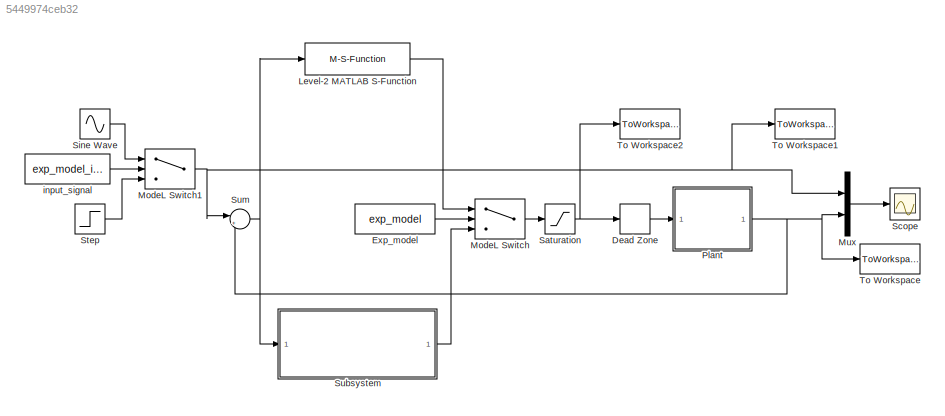
MODEL slx_5449974ceb32
KIND model
BLOCK [DeadZone] Dead Zone
  LowerValue = -2
  UpperValue = 2
BLOCK [Constant] Exp_model
  Value = exp_model
BLOCK [M-S-Function] Level-2 MATLAB S-Function
  FunctionName = lead_lag_s_function
  Parameters = lead_lag_params
  Ports = [1, 1]
BLOCK [Switch] ModeL Switch
  Criteria = u2 ~= 0
  InputSameDT = off
  SaturateOnIntegerOverflow = off
BLOCK [Switch] ModeL Switch1
  Criteria = u2 > Threshold
  InputSameDT = off
  SaturateOnIntegerOverflow = off
BLOCK [Mux] Mux
  DisplayOption = bar
  Inputs = 2
  Ports = [2, 1]
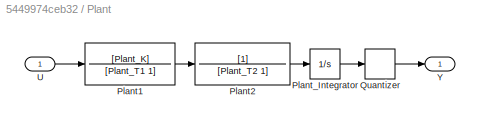
BLOCK [SubSystem] Plant
  FunctionWithSeparateData = off
  MaskHideContents = off
  MinAlgLoopOccurrences = off
  Opaque = off
  Ports = [1, 1]
  PropExecContextOutsideSubsystem = off
  RTWSystemCode = Auto
  RequestExecContextInheritance = off
BLOCK [TransferFcn] Plant/Plant1
  Denominator = [Plant_T1 1]
  Numerator = [Plant_K]
BLOCK [TransferFcn] Plant/Plant2
  Denominator = [Plant_T2 1]
BLOCK [Integrator] Plant/Plant_Integrator
  Ports = [1, 1]
BLOCK [Quantizer] Plant/Quantizer
  QuantizationInterval = 0.005
BLOCK [Inport] Plant/U
  IconDisplay = Signal name
BLOCK [Outport] Plant/Y
  IconDisplay = Signal name
BLOCK [Saturate] Saturation
  InputPortMap = u0
  LowerLimit = -19.2
  Ports = [1, 1]
  UpperLimit = 19.2
BLOCK [Scope] Scope
  DataFormat = StructureWithTime
  Floating = off
  LimitDataPoints = off
  NumInputPorts = 1
  Ports = [1]
  SampleTime = 0
  ShowLegends = off
  TimeRange = 5
BLOCK [Sin] Sine Wave
  Amplitude = 20
  Frequency = 2*pi*5
  Ports = [0, 1]
  SampleTime = 0
BLOCK [Step] Step
  After = 60
  SampleTime = 0
  Time = simulink_start_time
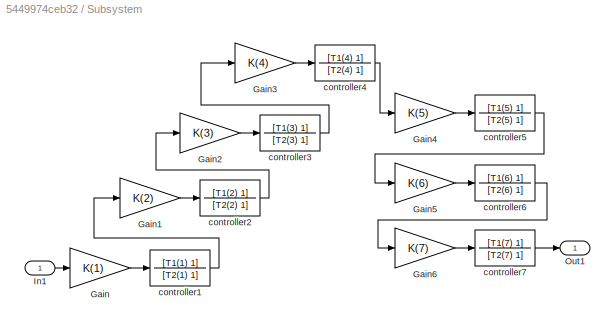
BLOCK [SubSystem] Subsystem
  FunctionWithSeparateData = off
  MaskHideContents = off
  MinAlgLoopOccurrences = off
  Opaque = off
  Ports = [1, 1]
  PropExecContextOutsideSubsystem = off
  RTWSystemCode = Auto
  RequestExecContextInheritance = off
BLOCK [Gain] Subsystem/Gain
  Gain = K(1)
  OutDataTypeStr = Inherit: Inherit via internal rule
  ParamDataTypeStr = Inherit: Inherit via internal rule
  SaturateOnIntegerOverflow = off
BLOCK [Gain] Subsystem/Gain1
  Gain = K(2)
  OutDataTypeStr = Inherit: Inherit via internal rule
  ParamDataTypeStr = Inherit: Inherit via internal rule
  SaturateOnIntegerOverflow = off
BLOCK [Gain] Subsystem/Gain2
  Gain = K(3)
  OutDataTypeStr = Inherit: Inherit via internal rule
  ParamDataTypeStr = Inherit: Inherit via internal rule
  SaturateOnIntegerOverflow = off
BLOCK [Gain] Subsystem/Gain3
  Gain = K(4)
  OutDataTypeStr = Inherit: Inherit via internal rule
  ParamDataTypeStr = Inherit: Inherit via internal rule
  SaturateOnIntegerOverflow = off
BLOCK [Gain] Subsystem/Gain4
  Gain = K(5)
  OutDataTypeStr = Inherit: Inherit via internal rule
  ParamDataTypeStr = Inherit: Inherit via internal rule
  SaturateOnIntegerOverflow = off
BLOCK [Gain] Subsystem/Gain5
  Gain = K(6)
  OutDataTypeStr = Inherit: Inherit via internal rule
  ParamDataTypeStr = Inherit: Inherit via internal rule
  SaturateOnIntegerOverflow = off
BLOCK [Gain] Subsystem/Gain6
  Gain = K(7)
  OutDataTypeStr = Inherit: Inherit via internal rule
  ParamDataTypeStr = Inherit: Inherit via internal rule
  SaturateOnIntegerOverflow = off
BLOCK [Inport] Subsystem/In1
  IconDisplay = Port number
BLOCK [Outport] Subsystem/Out1
  IconDisplay = Port number
BLOCK [TransferFcn] Subsystem/controller1
  Denominator = [T2(1) 1]
  Numerator = [T1(1) 1]
BLOCK [TransferFcn] Subsystem/controller2
  Denominator = [T2(2) 1]
  Numerator = [T1(2) 1]
BLOCK [TransferFcn] Subsystem/controller3
  Denominator = [T2(3) 1]
  Numerator = [T1(3) 1]
BLOCK [TransferFcn] Subsystem/controller4
  Denominator = [T2(4) 1]
  Numerator = [T1(4) 1]
BLOCK [TransferFcn] Subsystem/controller5
  Denominator = [T2(5) 1]
  Numerator = [T1(5) 1]
BLOCK [TransferFcn] Subsystem/controller6
  Denominator = [T2(6) 1]
  Numerator = [T1(6) 1]
BLOCK [TransferFcn] Subsystem/controller7
  Denominator = [T2(7) 1]
  Numerator = [T1(7) 1]
BLOCK [Sum] Sum
  IconShape = round
  InputSameDT = off
  Inputs = |+-
  OutDataTypeStr = Inherit: Inherit via internal rule
  Ports = [2, 1]
  SaturateOnIntegerOverflow = off
BLOCK [ToWorkspace] To Workspace
  MaxDataPoints = inf
  Ports = [1]
  SampleTime = -1
  VariableName = y
BLOCK [ToWorkspace] To Workspace1
  MaxDataPoints = inf
  Ports = [1]
  SampleTime = -1
  VariableName = r
BLOCK [ToWorkspace] To Workspace2
  MaxDataPoints = inf
  Ports = [1]
  SampleTime = -1
  VariableName = u
BLOCK [Constant] input_signal
  Value = exp_model_input
LINE Dead Zone:1 -> Plant:1
LINE Exp_model:1 -> ModeL Switch:2
LINE Level-2 MATLAB S-Function:1 -> ModeL Switch:1
NET ModeL Switch1:1 -> Mux:1, Sum:1, To Workspace1:1
LINE ModeL Switch:1 -> Saturation:1
LINE Mux:1 -> Scope:1
LINE Plant/Plant1:1 -> Plant/Plant2:1
LINE Plant/Plant2:1 -> Plant/Plant_Integrator:1
LINE Plant/Plant_Integrator:1 -> Plant/Quantizer:1
LINE Plant/Quantizer:1 -> Plant/Y:1
LINE Plant/U:1 -> Plant/Plant1:1
NET Plant:1 -> Mux:2, Sum:2, To Workspace:1
NET Saturation:1 -> Dead Zone:1, To Workspace2:1
LINE Sine Wave:1 -> ModeL Switch1:1
LINE Step:1 -> ModeL Switch1:3
LINE Subsystem/Gain1:1 -> Subsystem/controller2:1
LINE Subsystem/Gain2:1 -> Subsystem/controller3:1
LINE Subsystem/Gain3:1 -> Subsystem/controller4:1
LINE Subsystem/Gain4:1 -> Subsystem/controller5:1
LINE Subsystem/Gain5:1 -> Subsystem/controller6:1
LINE Subsystem/Gain6:1 -> Subsystem/controller7:1
LINE Subsystem/Gain:1 -> Subsystem/controller1:1
LINE Subsystem/In1:1 -> Subsystem/Gain:1
LINE Subsystem/controller1:1 -> Subsystem/Gain1:1
LINE Subsystem/controller2:1 -> Subsystem/Gain2:1
LINE Subsystem/controller3:1 -> Subsystem/Gain3:1
LINE Subsystem/controller4:1 -> Subsystem/Gain4:1
LINE Subsystem/controller5:1 -> Subsystem/Gain5:1
LINE Subsystem/controller6:1 -> Subsystem/Gain6:1
LINE Subsystem/controller7:1 -> Subsystem/Out1:1
LINE Subsystem:1 -> ModeL Switch:3
NET Sum:1 -> Level-2 MATLAB S-Function:1, Subsystem:1
LINE input_signal:1 -> ModeL Switch1:2
note: NET lines group one-source signal fan-out (src -> all destinations, sorted); 1:1 wires keep LINE
